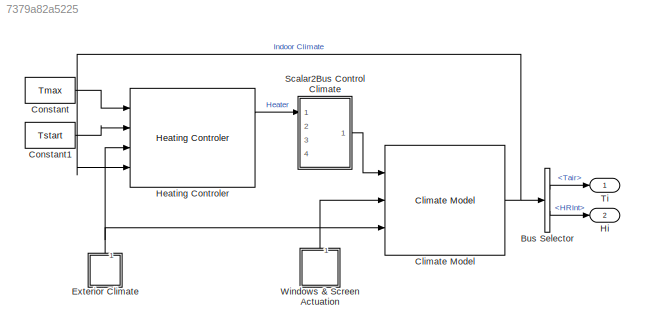
MODEL slx_7379a82a5225
KIND model
CONFIG AbsTol = auto
CONFIG EnableMultiTasking = off
CONFIG FixedStep = auto
CONFIG MaxStep = auto
CONFIG MinStep = auto
CONFIG RelTol = 1e-3
CONFIG SampleTimeConstraint = Unconstrained
CONFIG SolverName = VariableStepAuto
CONFIG StartTime = 0.0
CONFIG StopTime = tspan(end)
BLOCK [BusSelector] Bus Selector
  OutputSignals = Temp.Tair,Gas.HRInt
  Ports = [1, 2]
BLOCK [Reference] Climate Model  REF=HORTISIM/Climate/Models/Climate Model
  Ports = [3, 1]
  SourceBlock = HORTISIM/Climate/Models/Climate Model
  SourceProductName = Horti Simulator
BLOCK [Constant] Constant
  Value = Tmax
BLOCK [Constant] Constant1
  Value = Tstart
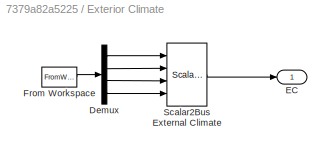
BLOCK [SubSystem] Exterior Climate
  Ports = [0, 1]
  RequestExecContextInheritance = off
BLOCK [Demux] Exterior Climate/Demux
  Ports = [1, 4]
BLOCK [Outport] Exterior Climate/EC
BLOCK [FromWorkspace] Exterior Climate/From Workspace
  VariableName = EC
BLOCK [Reference] Exterior Climate/Scalar2Bus External Climate  REF=HORTISIM/Other 
Functions/Scalar2Bus
External Climate
  Ports = [4, 1]
  SourceBlock = HORTISIM/Other \nFunctions/Scalar2Bus\nExternal Climate
  SourceProductName = Horti Simulator
  SourceType = SubSystem
BLOCK [Reference] Heating Controler  REF=HORTISIM/Climate/Controls/Heating Controler
  NameLocation = top
  Ports = [4, 3]
  SourceBlock = HORTISIM/Climate/Controls/Heating Controler
  SourceProductName = Horti Simulator
BLOCK [Outport] Hi
  Port = 2
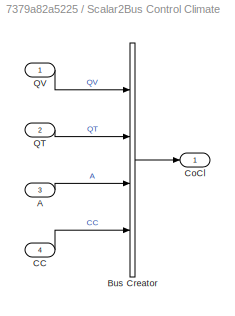
BLOCK [SubSystem] Scalar2Bus Control Climate
  Ports = [4, 1]
  RequestExecContextInheritance = off
BLOCK [Inport] Scalar2Bus Control Climate/A
  Port = 3
BLOCK [BusCreator] Scalar2Bus Control Climate/Bus Creator
  DisplayOption = bar
  InheritFromInputs = on
  Inputs = 4
  Ports = [4, 1]
BLOCK [Inport] Scalar2Bus Control Climate/CC
  Port = 4
BLOCK [Outport] Scalar2Bus Control Climate/CoCl
BLOCK [Inport] Scalar2Bus Control Climate/QT
  Port = 2
BLOCK [Inport] Scalar2Bus Control Climate/QV
BLOCK [Outport] Ti
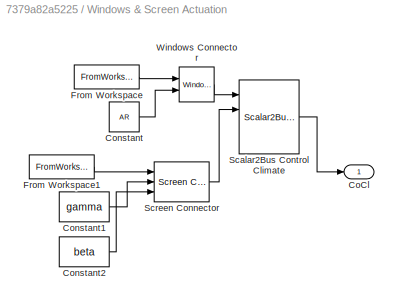
BLOCK [SubSystem] Windows & Screen Actuation
  Ports = [0, 1]
  RequestExecContextInheritance = off
BLOCK [Outport] Windows & Screen Actuation/CoCl
BLOCK [Constant] Windows & Screen Actuation/Constant
  Value = AR
BLOCK [Constant] Windows & Screen Actuation/Constant1
  Value = gamma
BLOCK [Constant] Windows & Screen Actuation/Constant2
  Value = beta
BLOCK [FromWorkspace] Windows & Screen Actuation/From Workspace
  VariableName = Windows
BLOCK [FromWorkspace] Windows & Screen Actuation/From Workspace1
  VariableName = Screen
BLOCK [Reference] Windows & Screen Actuation/Scalar2Bus Control Climate  REF=HORTISIM/Other 
Functions/Scalar2Bus 
Control Climate
  Ports = [4, 1]
  SourceBlock = HORTISIM/Other \nFunctions/Scalar2Bus \nControl Climate
  SourceProductName = Horti Simulator
  SourceType = SubSystem
BLOCK [Reference] Windows & Screen Actuation/Screen Connector  REF=HORTISIM/Other 
Functions/Screen
Connector
  Ports = [3, 1]
  SourceBlock = HORTISIM/Other \nFunctions/Screen\nConnector
  SourceProductName = Horti Simulator
  SourceType = SubSystem
BLOCK [Reference] Windows & Screen Actuation/Windows Connector  REF=HORTISIM/Other 
Functions/Windows
Connector
  Ports = [2, 1]
  SourceBlock = HORTISIM/Other \nFunctions/Windows\nConnector
  SourceProductName = Horti Simulator
  SourceType = SubSystem
LINE Bus Selector:1 -> Ti:1
LINE Bus Selector:2 -> Hi:1
NET Climate Model:1 -> Bus Selector:1, Heating Controler:4
LINE Constant1:1 -> Heating Controler:2
LINE Constant:1 -> Heating Controler:1
LINE Exterior Climate/Demux:1 -> Exterior Climate/Scalar2Bus External Climate:1
LINE Exterior Climate/Demux:2 -> Exterior Climate/Scalar2Bus External Climate:2
LINE Exterior Climate/Demux:3 -> Exterior Climate/Scalar2Bus External Climate:3
LINE Exterior Climate/Demux:4 -> Exterior Climate/Scalar2Bus External Climate:4
LINE Exterior Climate/From Workspace:1 -> Exterior Climate/Demux:1
LINE Exterior Climate/Scalar2Bus External Climate:1 -> Exterior Climate/EC:1
NET Exterior Climate:1 -> Climate Model:3, Heating Controler:3
LINE Heating Controler:1 -> Scalar2Bus Control Climate:1
LINE Scalar2Bus Control Climate/A:1 -> Scalar2Bus Control Climate/Bus Creator:3
LINE Scalar2Bus Control Climate/Bus Creator:1 -> Scalar2Bus Control Climate/CoCl:1
LINE Scalar2Bus Control Climate/CC:1 -> Scalar2Bus Control Climate/Bus Creator:4
LINE Scalar2Bus Control Climate/QT:1 -> Scalar2Bus Control Climate/Bus Creator:2
LINE Scalar2Bus Control Climate/QV:1 -> Scalar2Bus Control Climate/Bus Creator:1
LINE Scalar2Bus Control Climate:1 -> Climate Model:1
LINE Windows & Screen Actuation/Constant1:1 -> Windows & Screen Actuation/Screen Connector:2
LINE Windows & Screen Actuation/Constant2:1 -> Windows & Screen Actuation/Screen Connector:3
LINE Windows & Screen Actuation/Constant:1 -> Windows & Screen Actuation/Windows Connector:2
LINE Windows & Screen Actuation/From Workspace1:1 -> Windows & Screen Actuation/Screen Connector:1
LINE Windows & Screen Actuation/From Workspace:1 -> Windows & Screen Actuation/Windows Connector:1
LINE Windows & Screen Actuation/Scalar2Bus Control Climate:1 -> Windows & Screen Actuation/CoCl:1
LINE Windows & Screen Actuation/Screen Connector:1 -> Windows & Screen Actuation/Scalar2Bus Control Climate:2
LINE Windows & Screen Actuation/Windows Connector:1 -> Windows & Screen Actuation/Scalar2Bus Control Climate:1
LINE Windows & Screen Actuation:1 -> Climate Model:2
note: NET lines group one-source signal fan-out (src -> all destinations, sorted); 1:1 wires keep LINE
